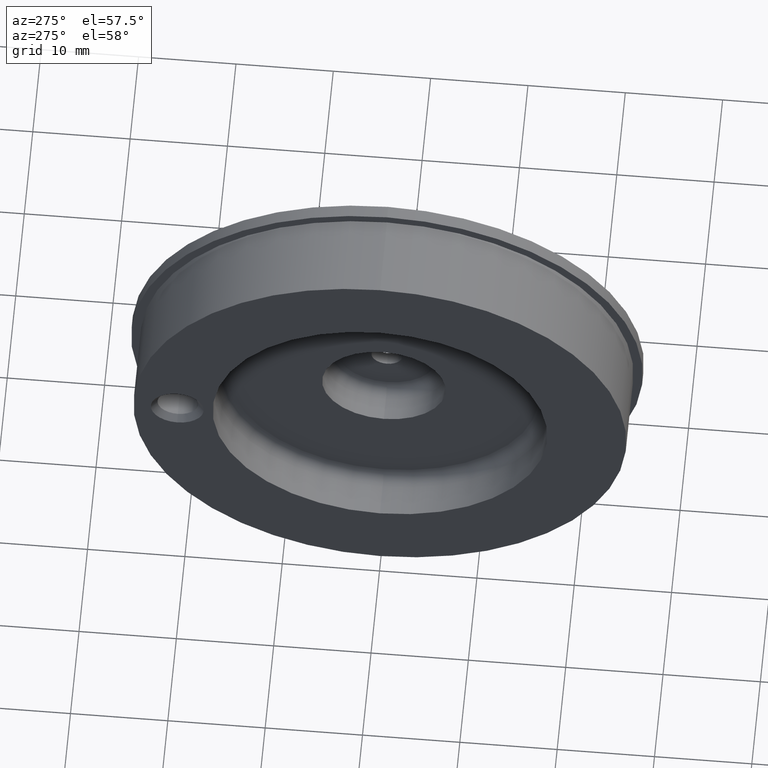
[diagram: clean part render]
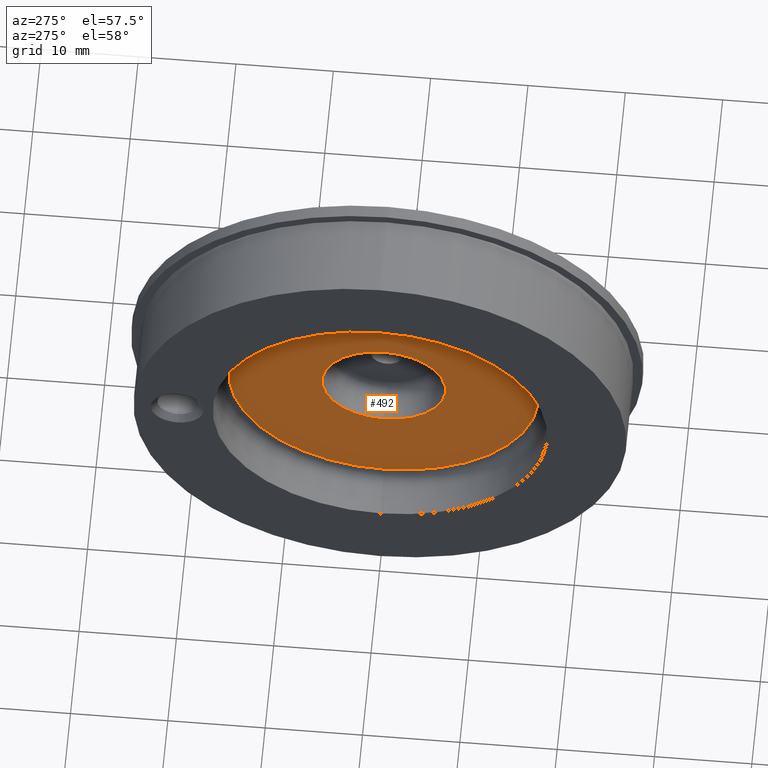
[diagram: same view with one face highlighted and labeled with its STEP entity id]
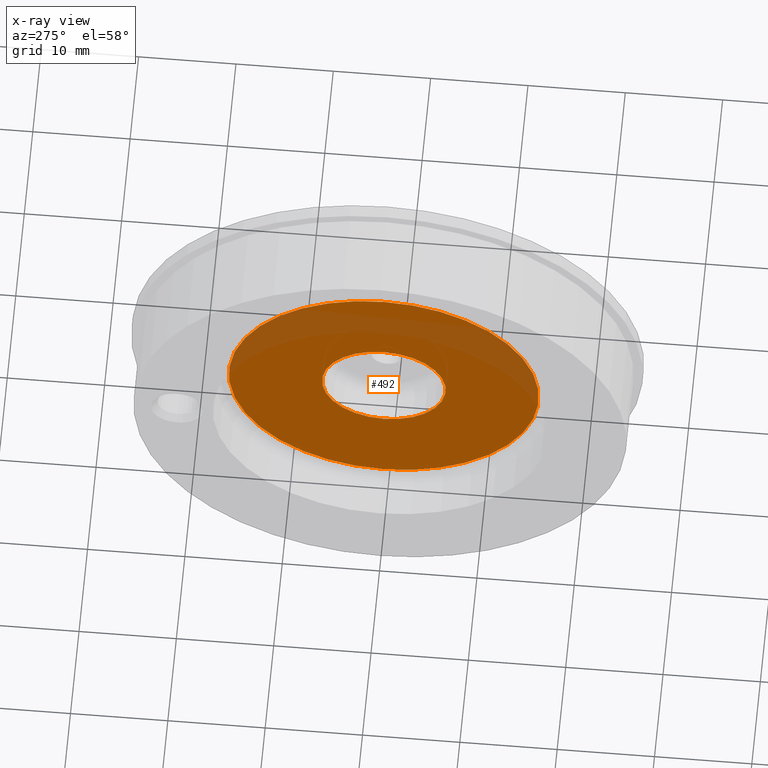
[diagram: x-ray of the same camera — body ghosted, the highlighted face saturated]
A machine part, auxiliary view. The second image highlights one B-rep face of the part: STEP entity #492.
The next image is the same camera in x-ray: the body ghosted, the highlighted face saturated — about 20% of this face is hidden behind the body in this view.
In plain terms, the highlighted planar face has unit normal (-1, 0, 0).
Its self-contained STEP definition (entity closure, byte-faithful):
#4 = DIRECTION ( 'NONE',  ( 0.0000000000000000000, 0.0000000000000000000, -1.000000000000000000 ) ) ;
#9 = DIRECTION ( 'NONE',  ( 0.0000000000000000000, 0.0000000000000000000, -1.000000000000000000 ) ) ;
#12 = CARTESIAN_POINT ( 'NONE',  ( -0.1950000000000000100, 0.0000000000000000000, 0.0000000000000000000 ) ) ;
#31 = CARTESIAN_POINT ( 'NONE',  ( -0.1950000000000000300, 0.0000000000000000000, 0.0000000000000000000 ) ) ;
#34 = CARTESIAN_POINT ( 'NONE',  ( -0.1950000000000000100, 0.0000000000000000000, 0.0000000000000000000 ) ) ;
#35 = CARTESIAN_POINT ( 'NONE',  ( -0.1950000000000000300, 0.0000000000000000000, 0.0000000000000000000 ) ) ;
#54 = DIRECTION ( 'NONE',  ( 0.0000000000000000000, 0.0000000000000000000, -1.000000000000000000 ) ) ;
#78 = DIRECTION ( 'NONE',  ( 1.000000000000000000, -0.0000000000000000000, -0.0000000000000000000 ) ) ;
#92 = DIRECTION ( 'NONE',  ( 1.000000000000000000, -0.0000000000000000000, -0.0000000000000000000 ) ) ;
#109 = DIRECTION ( 'NONE',  ( 1.000000000000000000, -0.0000000000000000000, -0.0000000000000000000 ) ) ;
#132 = DIRECTION ( 'NONE',  ( 1.000000000000000000, -0.0000000000000000000, -0.0000000000000000000 ) ) ;
#149 = DIRECTION ( 'NONE',  ( 0.0000000000000000000, 0.0000000000000000000, -1.000000000000000000 ) ) ;
#207 = EDGE_LOOP ( 'NONE', ( #347, #316 ) ) ;
#233 = FACE_OUTER_BOUND ( 'NONE', #460, .T. ) ;
#244 = CIRCLE ( 'NONE', #551, 0.6270000000000002200 ) ;
#254 = CIRCLE ( 'NONE', #535, 0.2499999999999999700 ) ;
#284 = FACE_BOUND ( 'NONE', #207, .T. ) ;
#285 = CIRCLE ( 'NONE', #533, 0.6270000000000002200 ) ;
#300 = VERTEX_POINT ( 'NONE', #700 ) ;
#316 = ORIENTED_EDGE ( 'NONE', *, *, #635, .T. ) ;
#347 = ORIENTED_EDGE ( 'NONE', *, *, #576, .T. ) ;
#359 = ORIENTED_EDGE ( 'NONE', *, *, #624, .F. ) ;
#367 = CIRCLE ( 'NONE', #518, 0.2499999999999999700 ) ;
#404 = VERTEX_POINT ( 'NONE', #715 ) ;
#412 = ORIENTED_EDGE ( 'NONE', *, *, #571, .F. ) ;
#446 = VERTEX_POINT ( 'NONE', #726 ) ;
#457 = VERTEX_POINT ( 'NONE', #728 ) ;
#460 = EDGE_LOOP ( 'NONE', ( #359, #412 ) ) ;
#492 = ADVANCED_FACE ( 'NONE', ( #284, #233 ), #681, .T. ) ;
#518 = AXIS2_PLACEMENT_3D ( 'NONE', #34, #132, #54 ) ;
#533 = AXIS2_PLACEMENT_3D ( 'NONE', #31, #78, #149 ) ;
#535 = AXIS2_PLACEMENT_3D ( 'NONE', #12, #92, #4 ) ;
#551 = AXIS2_PLACEMENT_3D ( 'NONE', #35, #109, #9 ) ;
#571 = EDGE_CURVE ( 'NONE', #404, #300, #285, .T. ) ;
#576 = EDGE_CURVE ( 'NONE', #457, #446, #254, .T. ) ;
#586 = AXIS2_PLACEMENT_3D ( 'NONE', #658, #691, #711 ) ;
#624 = EDGE_CURVE ( 'NONE', #300, #404, #244, .T. ) ;
#635 = EDGE_CURVE ( 'NONE', #446, #457, #367, .T. ) ;
#658 = CARTESIAN_POINT ( 'NONE',  ( -0.1950000000000000300, 0.6270000000000002200, 0.0000000000000000000 ) ) ;
#681 = PLANE ( 'NONE',  #586 ) ;
#691 = DIRECTION ( 'NONE',  ( -1.000000000000000000, 0.0000000000000000000, 0.0000000000000000000 ) ) ;
#700 = CARTESIAN_POINT ( 'NONE',  ( -0.1950000000000000300, 0.0000000000000000000, -0.6270000000000002200 ) ) ;
#711 = DIRECTION ( 'NONE',  ( 0.0000000000000000000, 0.0000000000000000000, 1.000000000000000000 ) ) ;
#715 = CARTESIAN_POINT ( 'NONE',  ( -0.1950000000000000300, 7.984697130440743700E-017, 0.6270000000000002200 ) ) ;
#726 = CARTESIAN_POINT ( 'NONE',  ( -0.1950000000000000100, 3.061616997868382400E-017, 0.2499999999999999700 ) ) ;
#728 = CARTESIAN_POINT ( 'NONE',  ( -0.1950000000000000100, 0.0000000000000000000, -0.2499999999999999700 ) ) ;